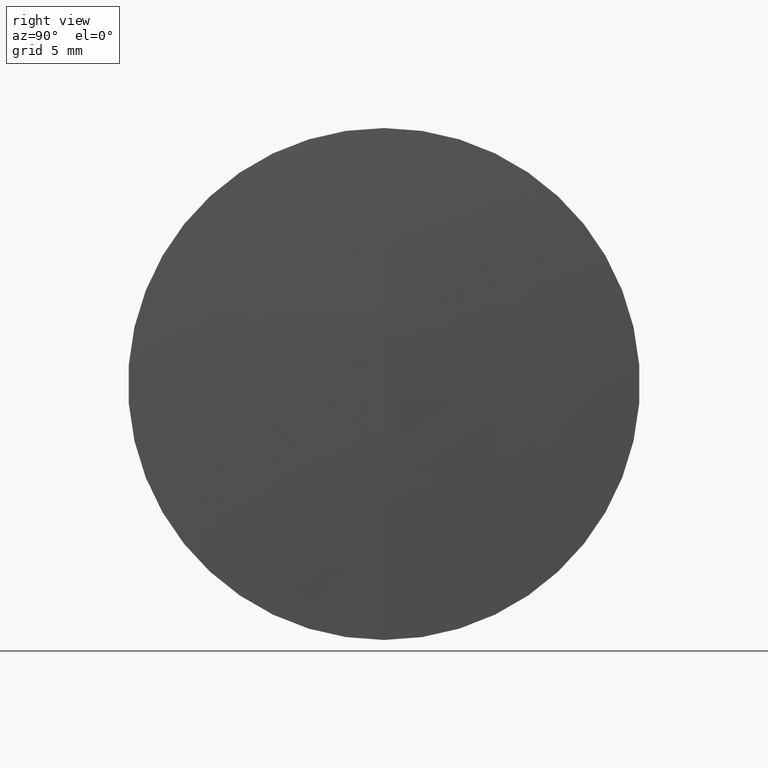
[diagram: clean part render]
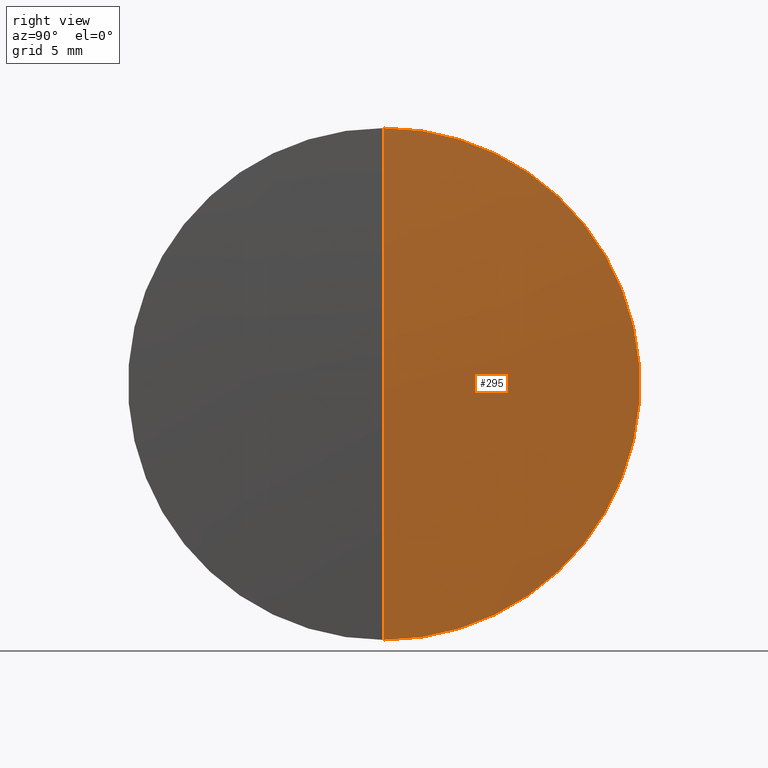
[diagram: same view with one face highlighted and labeled with its STEP entity id]
A machine part, right view. The second image highlights one B-rep face of the part: STEP entity #295.
In plain terms, the highlighted spherical surface has radius 259.41 mm.
Its self-contained STEP definition (entity closure, byte-faithful):
#6 = ORIENTED_EDGE ( 'NONE', *, *, #222, .F. ) ;
#7 = CARTESIAN_POINT ( 'NONE',  ( 45.79012593811276600, 0.0000000000000000000, 0.0000000000000000000 ) ) ;
#8 = EDGE_CURVE ( 'NONE', #9, #41, #281, .T. ) ;
#9 = VERTEX_POINT ( 'NONE', #212 ) ;
#16 = DIRECTION ( 'NONE',  ( 0.0000000000000000000, 0.0000000000000000000, 1.000000000000000000 ) ) ;
#30 = DIRECTION ( 'NONE',  ( 0.0000000000000000000, -1.224646799147353200E-016, 1.000000000000000000 ) ) ;
#41 = VERTEX_POINT ( 'NONE', #43 ) ;
#43 = CARTESIAN_POINT ( 'NONE',  ( 304.8890609031180400, 1.555301434917140200E-015, -12.70000000000001000 ) ) ;
#56 = CARTESIAN_POINT ( 'NONE',  ( 304.8890609031180400, 0.0000000000000000000, 12.70000000000001000 ) ) ;
#90 = AXIS2_PLACEMENT_3D ( 'NONE', #7, #186, #30 ) ;
#115 = DIRECTION ( 'NONE',  ( 0.0000000000000000000, 1.000000000000000000, 0.0000000000000000000 ) ) ;
#121 = AXIS2_PLACEMENT_3D ( 'NONE', #159, #219, #16 ) ;
#140 = DIRECTION ( 'NONE',  ( 0.0000000000000000000, 0.0000000000000000000, -1.000000000000000000 ) ) ;
#159 = CARTESIAN_POINT ( 'NONE',  ( 304.8890609031180400, 0.0000000000000000000, 0.0000000000000000000 ) ) ;
#177 = EDGE_LOOP ( 'NONE', ( #6, #244, #197 ) ) ;
#186 = DIRECTION ( 'NONE',  ( -0.0000000000000000000, 1.000000000000000000, 1.224646799147353200E-016 ) ) ;
#190 = CARTESIAN_POINT ( 'NONE',  ( 45.79012593811276600, 0.0000000000000000000, 0.0000000000000000000 ) ) ;
#193 = DIRECTION ( 'NONE',  ( 0.0000000000000000000, 0.0000000000000000000, 1.000000000000000000 ) ) ;
#197 = ORIENTED_EDGE ( 'NONE', *, *, #338, .F. ) ;
#198 = AXIS2_PLACEMENT_3D ( 'NONE', #190, #307, #140 ) ;
#212 = CARTESIAN_POINT ( 'NONE',  ( 305.2001259381128200, 0.0000000000000000000, 1.588428130834074600E-014 ) ) ;
#217 = CIRCLE ( 'NONE', #121, 12.70000000000001000 ) ;
#219 = DIRECTION ( 'NONE',  ( -1.000000000000000000, -0.0000000000000000000, -0.0000000000000000000 ) ) ;
#222 = EDGE_CURVE ( 'NONE', #9, #274, #228, .T. ) ;
#228 = CIRCLE ( 'NONE', #198, 259.4100000000000300 ) ;
#244 = ORIENTED_EDGE ( 'NONE', *, *, #8, .T. ) ;
#246 = SPHERICAL_SURFACE ( 'NONE', #347, 259.4100000000000300 ) ;
#274 = VERTEX_POINT ( 'NONE', #56 ) ;
#281 = CIRCLE ( 'NONE', #90, 259.4100000000000300 ) ;
#283 = CARTESIAN_POINT ( 'NONE',  ( 45.79012593811276600, 0.0000000000000000000, 0.0000000000000000000 ) ) ;
#295 = ADVANCED_FACE ( 'NONE', ( #312 ), #246, .T. ) ;
#307 = DIRECTION ( 'NONE',  ( 0.0000000000000000000, -1.000000000000000000, 0.0000000000000000000 ) ) ;
#312 = FACE_OUTER_BOUND ( 'NONE', #177, .T. ) ;
#338 = EDGE_CURVE ( 'NONE', #274, #41, #217, .T. ) ;
#347 = AXIS2_PLACEMENT_3D ( 'NONE', #283, #115, #193 ) ;